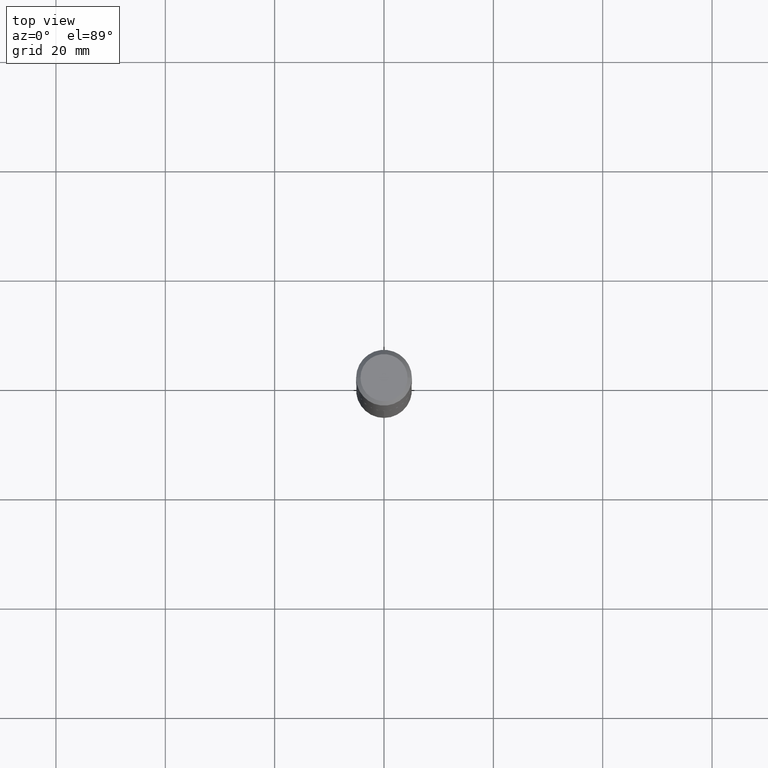
[diagram: clean part render]
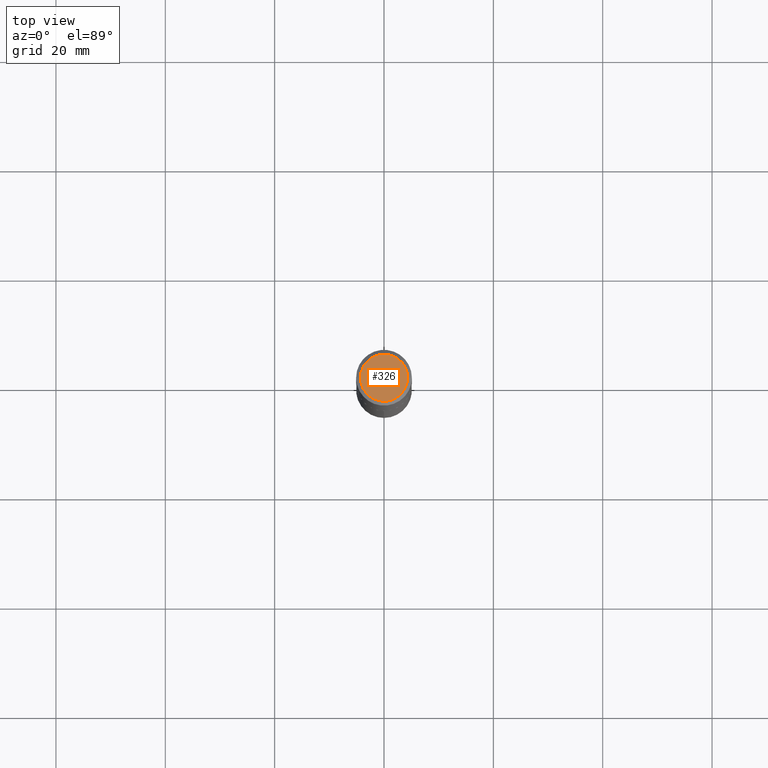
[diagram: same view with one face highlighted and labeled with its STEP entity id]
A machine part, top view. The second image highlights one B-rep face of the part: STEP entity #326.
In plain terms, the highlighted planar face has unit normal (0, -0, -1).
Its self-contained STEP definition (entity closure, byte-faithful):
#26 = EDGE_LOOP ( 'NONE', ( #240, #206 ) ) ;
#27 = AXIS2_PLACEMENT_3D ( 'NONE', #335, #250, #142 ) ;
#41 = DIRECTION ( 'NONE',  ( -2.445468806185136597E-29, 3.491481338843145583E-15, 1.000000000000000000 ) ) ;
#49 = EDGE_CURVE ( 'NONE', #296, #284, #315, .T. ) ;
#83 = PLANE ( 'NONE',  #27 ) ;
#105 = CIRCLE ( 'NONE', #215, 0.1695500000000000063 ) ;
#106 = DIRECTION ( 'NONE',  ( 1.000000000000000000, -6.982962677686267499E-15, 4.876167740117660532E-29 ) ) ;
#142 = DIRECTION ( 'NONE',  ( -1.000000000000000000, 6.982962677686265922E-15, -4.876176775795935793E-29 ) ) ;
#151 = CARTESIAN_POINT ( 'NONE',  ( 0.1695500000000000063, -1.324947112656768051E-15, 7.225416115057117529E-19 ) ) ;
#178 = EDGE_CURVE ( 'NONE', #284, #296, #105, .T. ) ;
#186 = CARTESIAN_POINT ( 'NONE',  ( -1.766952972086505154E-47, 2.522740553079218199E-33, 7.225416114969394308E-19 ) ) ;
#202 = DIRECTION ( 'NONE',  ( -2.445468806185136597E-29, 3.491481338843145583E-15, 1.000000000000000000 ) ) ;
#206 = ORIENTED_EDGE ( 'NONE', *, *, #178, .T. ) ;
#215 = AXIS2_PLACEMENT_3D ( 'NONE', #358, #202, #361 ) ;
#224 = AXIS2_PLACEMENT_3D ( 'NONE', #186, #41, #106 ) ;
#240 = ORIENTED_EDGE ( 'NONE', *, *, #49, .T. ) ;
#250 = DIRECTION ( 'NONE',  ( 2.438088387897960049E-29, -3.491481338843145188E-15, -1.000000000000000000 ) ) ;
#284 = VERTEX_POINT ( 'NONE', #151 ) ;
#296 = VERTEX_POINT ( 'NONE', #338 ) ;
#315 = CIRCLE ( 'NONE', #224, 0.1695500000000000063 ) ;
#326 = ADVANCED_FACE ( 'NONE', ( #368 ), #83, .F. ) ;
#335 = CARTESIAN_POINT ( 'NONE',  ( -8.834764860432525770E-48, 1.261370276539609100E-33, 3.612708057484697154E-19 ) ) ;
#338 = CARTESIAN_POINT ( 'NONE',  ( -0.1695500000000000063, 1.238515717921129883E-15, 7.225416114884689021E-19 ) ) ;
#358 = CARTESIAN_POINT ( 'NONE',  ( -1.766952972086505154E-47, 2.522740553079218199E-33, 7.225416114969394308E-19 ) ) ;
#361 = DIRECTION ( 'NONE',  ( 1.000000000000000000, -6.982962677686267499E-15, 4.876167740117660532E-29 ) ) ;
#368 = FACE_OUTER_BOUND ( 'NONE', #26, .T. ) ;